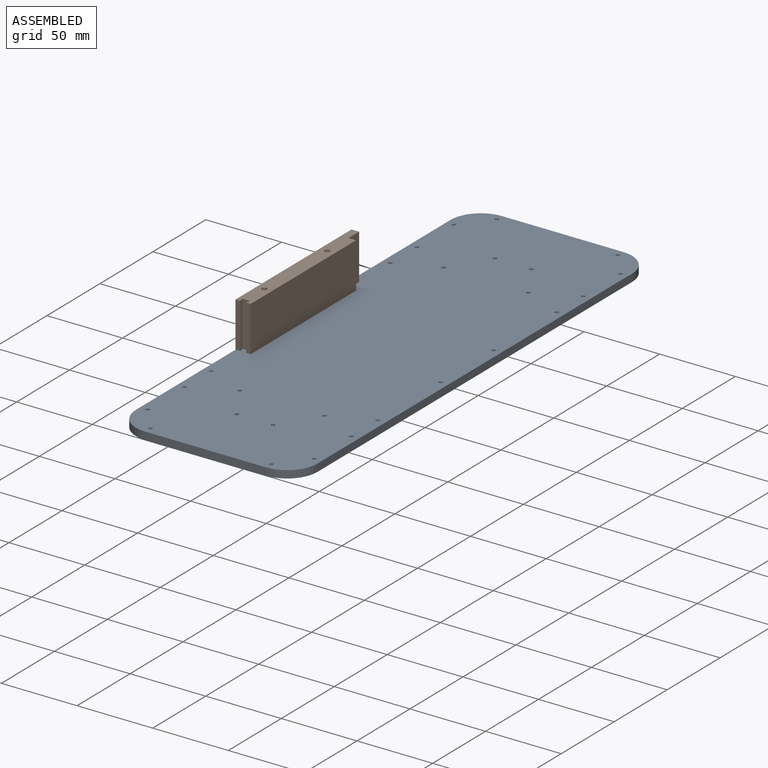
[diagram: assembled view]
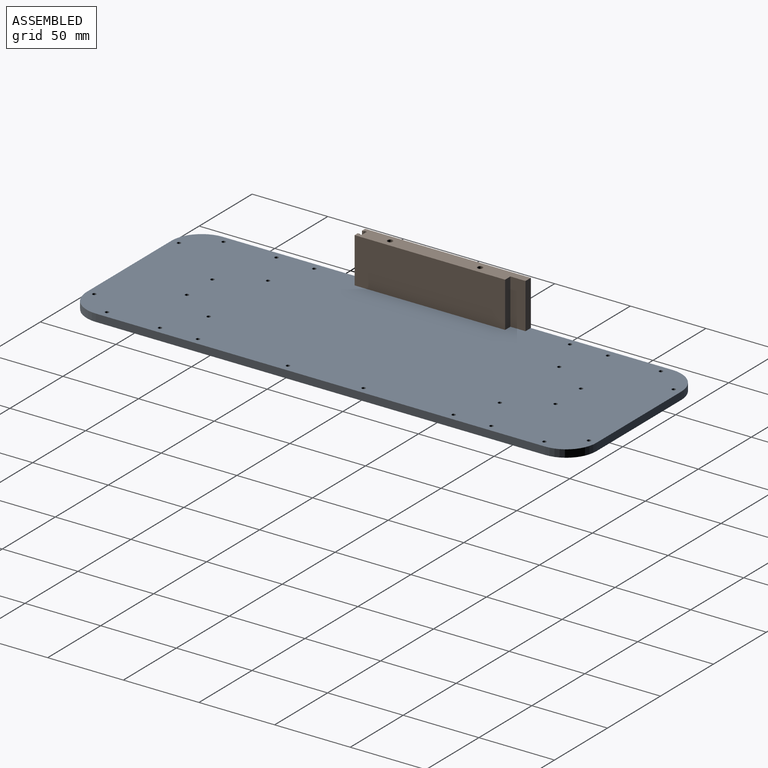
[diagram: assembled view, second angle]
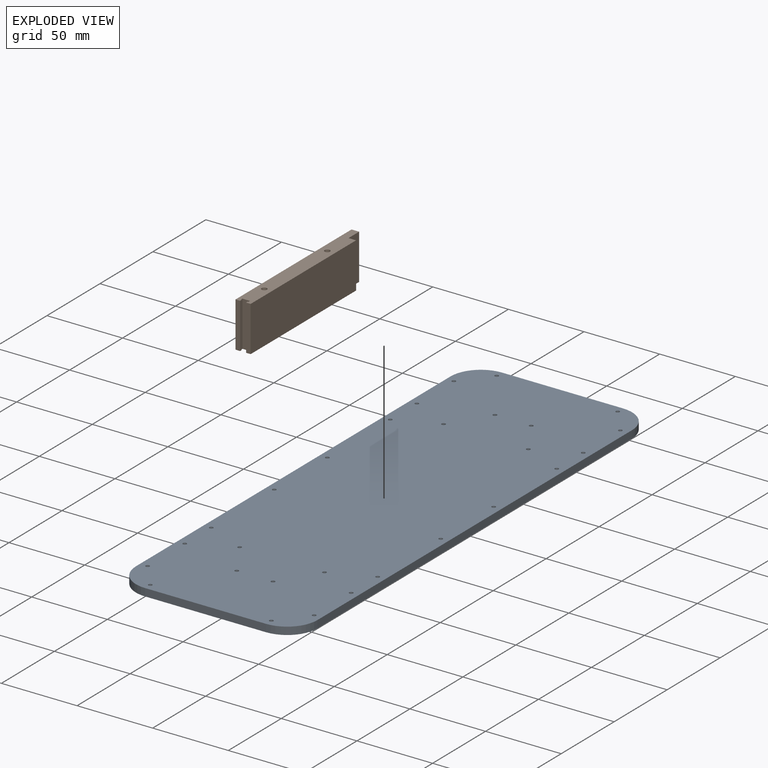
[diagram: exploded view]
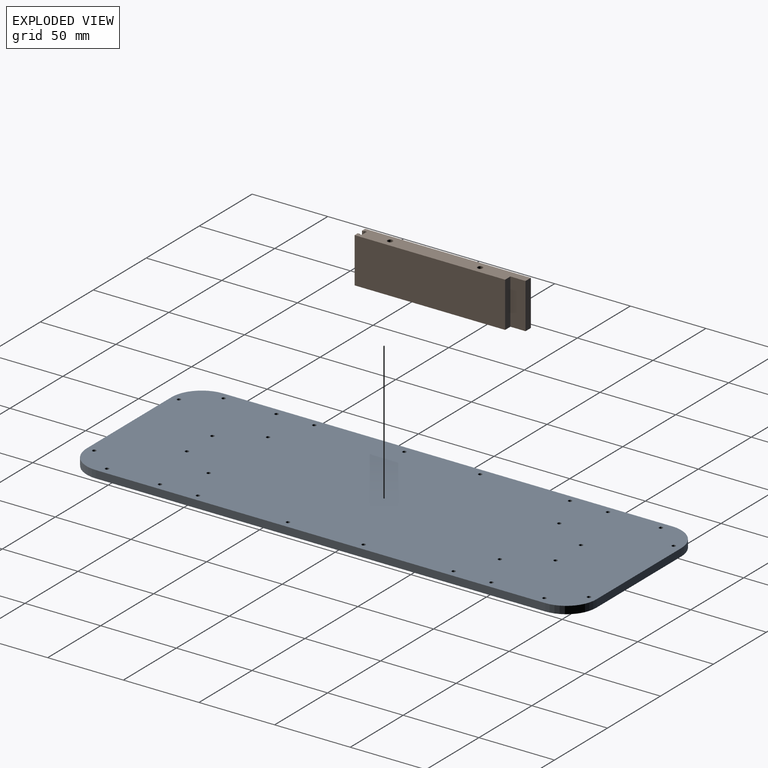
[diagram: exploded view, second angle]
ASSEMBLY  parts=2 mates=2
PART A: 38 faces, bbox 120x337x5 mm
  f0: plane 337x120mm, normal (0,0,1), area 39959.2mm2, adj f2,f3,f4,f5,f6,f7,f8,f9
  f1: plane 337x120mm, normal (0,0,-1), area 39959.2mm2, adj f2,f3,f4,f5,f6,f7,f8,f9
  f2: cylinder r=20mm len=20mm, axis (0,0,-1), area 157.1mm2, adj f0,f1,f3,f9
  f3: plane 297x5mm, normal (-1,0,0), area 1485mm2, adj f0,f1,f2,f4
  f4: cylinder r=20mm len=20mm, axis (0,0,-1), area 157.1mm2, adj f0,f1,f3,f5
  f5: plane 80x5mm, normal (0,-1,0), area 400mm2, adj f0,f1,f4,f6
  f6: cylinder r=20mm len=20mm, axis (0,0,-1), area 157.1mm2, adj f0,f1,f5,f7
  f7: plane 297x5mm, normal (1,0,0), area 1485mm2, adj f0,f1,f6,f8
  f8: cylinder r=20mm len=20mm, axis (0,0,-1), area 157.1mm2, adj f0,f1,f7,f9
  f9: plane 80x5mm, normal (0,1,0), area 400mm2, adj f0,f1,f2,f8
  f10: cylinder r=1.25mm len=5mm, axis (0,0,-1), area 39.3mm2, adj f0,f1
  f11: cylinder r=1.25mm len=5mm, axis (0,0,-1), area 39.3mm2, adj f0,f1
  f12: cylinder r=1.25mm len=5mm, axis (0,0,-1), area 39.3mm2, adj f0,f1
  f13: cylinder r=1.25mm len=5mm, axis (0,0,-1), area 39.3mm2, adj f0,f1
  f14: cylinder r=1.25mm len=5mm, axis (0,0,-1), area 39.3mm2, adj f0,f1
  f15: cylinder r=1.25mm len=5mm, axis (0,0,-1), area 39.3mm2, adj f0,f1
  f16: cylinder r=1.25mm len=5mm, axis (0,0,-1), area 39.3mm2, adj f0,f1
  f17: cylinder r=1.25mm len=5mm, axis (0,0,-1), area 39.3mm2, adj f0,f1
  f18: cylinder r=1.25mm len=5mm, axis (0,0,-1), area 39.3mm2, adj f0,f1
  f19: cylinder r=1.25mm len=5mm, axis (0,0,-1), area 39.3mm2, adj f0,f1
  f20: cylinder r=1.25mm len=5mm, axis (0,0,-1), area 39.3mm2, adj f0,f1
  f21: cylinder r=1.25mm len=5mm, axis (0,0,-1), area 39.3mm2, adj f0,f1
  f22: cylinder r=1.25mm len=5mm, axis (0,0,-1), area 39.3mm2, adj f0,f1
  f23: cylinder r=1.25mm len=5mm, axis (0,0,-1), area 39.3mm2, adj f0,f1
  f24: cylinder r=1.25mm len=5mm, axis (0,0,-1), area 39.3mm2, adj f0,f1
  f25: cylinder r=1.25mm len=5mm, axis (0,0,-1), area 39.3mm2, adj f0,f1
  f26: cylinder r=1.25mm len=5mm, axis (0,0,-1), area 39.3mm2, adj f0,f1
  f27: cylinder r=1.25mm len=5mm, axis (0,0,-1), area 39.3mm2, adj f0,f1
  f28: cylinder r=1.25mm len=5mm, axis (0,0,-1), area 39.3mm2, adj f0,f1
  f29: cylinder r=1.25mm len=5mm, axis (0,0,-1), area 39.3mm2, adj f0,f1
  f30: cylinder r=1.25mm len=5mm, axis (0,0,-1), area 39.3mm2, adj f0,f1
  f31: cylinder r=1.25mm len=5mm, axis (0,0,-1), area 39.3mm2, adj f0,f1
  f32: cylinder r=1.25mm len=5mm, axis (0,0,-1), area 39.3mm2, adj f0,f1
  f33: cylinder r=1.25mm len=5mm, axis (0,0,-1), area 39.3mm2, adj f0,f1
  f34: cylinder r=1.25mm len=5mm, axis (0,0,-1), area 39.3mm2, adj f0,f1
  f35: cylinder r=1.25mm len=5mm, axis (0,0,-1), area 39.3mm2, adj f0,f1
  f36: cylinder r=1.25mm len=5mm, axis (0,0,-1), area 39.3mm2, adj f0,f1
  f37: cylinder r=1.25mm len=5mm, axis (0,0,-1), area 39.3mm2, adj f0,f1
PART B: 18 faces, bbox 10x109.5x30 mm
  f0: plane 109.5x10mm, normal (0,0,1), area 1012.3mm2, adj f2,f3,f4,f5,f6,f7,f8,f9
  f1: plane 109.5x10mm, normal (0,0,-1), area 1012.3mm2, adj f2,f3,f4,f5,f6,f7,f8,f9
  f2: plane 30x5mm, normal (0,-1,0), area 150mm2, adj f0,f1,f3,f15
  f3: plane 30x1.5mm, normal (-1,0,0), area 45mm2, adj f0,f1,f2,f4
  f4: plane 30x0.5mm, normal (0,1,0), area 15mm2, adj f0,f1,f3,f5
  f5: plane 30x1.5mm, normal (-1,0,0), area 45mm2, adj f0,f1,f4,f6
  f6: plane 30x3mm, normal (0,-1,0), area 90mm2, adj f0,f1,f5,f7
  f7: plane 99.5x30mm, normal (1,0,0), area 2985mm2, adj f0,f1,f6,f8
  f8: plane 30x5mm, normal (0,1,0), area 150mm2, adj f0,f1,f7,f9
  f9: plane 30x10mm, normal (1,0,0), area 300mm2, adj f0,f1,f8,f10
  f10: plane 30x5mm, normal (0,1,0), area 150mm2, adj f0,f1,f9,f11
  f11: plane 109.5x30mm, normal (-1,0,0), area 3285mm2, adj f0,f1,f10,f12
  f12: plane 30x3mm, normal (0,-1,0), area 90mm2, adj f0,f1,f11,f13
  f13: plane 30x1.5mm, normal (1,0,0), area 45mm2, adj f0,f1,f12,f14
  f14: plane 30x0.5mm, normal (0,1,0), area 15mm2, adj f0,f1,f13,f15
  f15: plane 30x1.5mm, normal (1,0,0), area 45mm2, adj f0,f1,f2,f14
  f16: cylinder r=1.75mm len=30mm, axis (0,0,-1), area 329.9mm2, adj f0,f1
  f17: cylinder r=1.75mm len=30mm, axis (0,0,-1), area 329.9mm2, adj f0,f1
PLACE A t=(-3.51,-5.19,-2.29)mm fixed
PLACE B t=(-58.51,-4.9,2.71)mm
MATE parallel A.f0 <-> B.f1  axis (0,0,1) through (-3.51,-5.19,2.71)mm
MATE cylindrical B.f17 <-> A.f25  axis (0,0,-1) through (-58.51,19.85,2.71)mm
